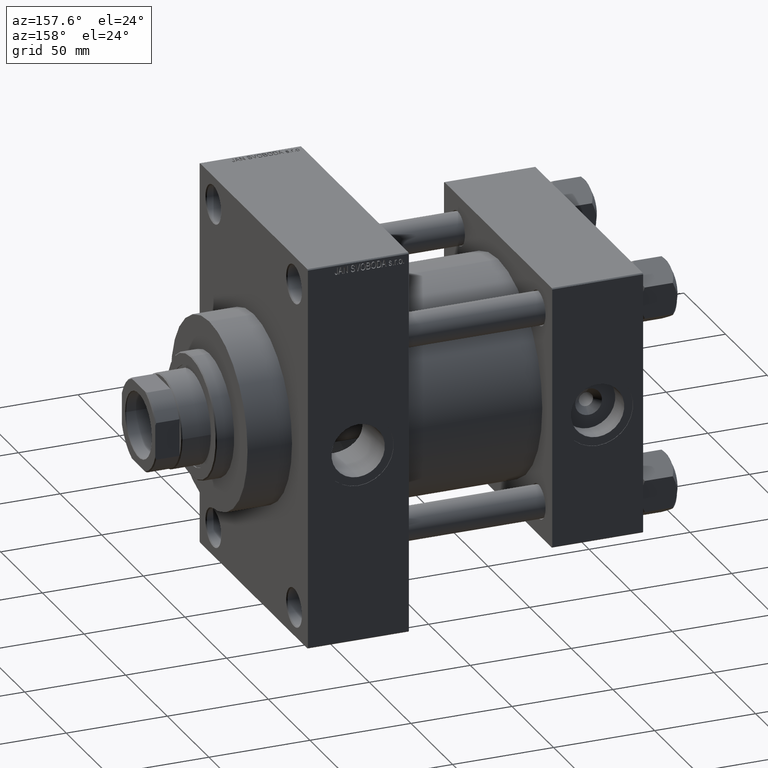
[diagram: clean part render]
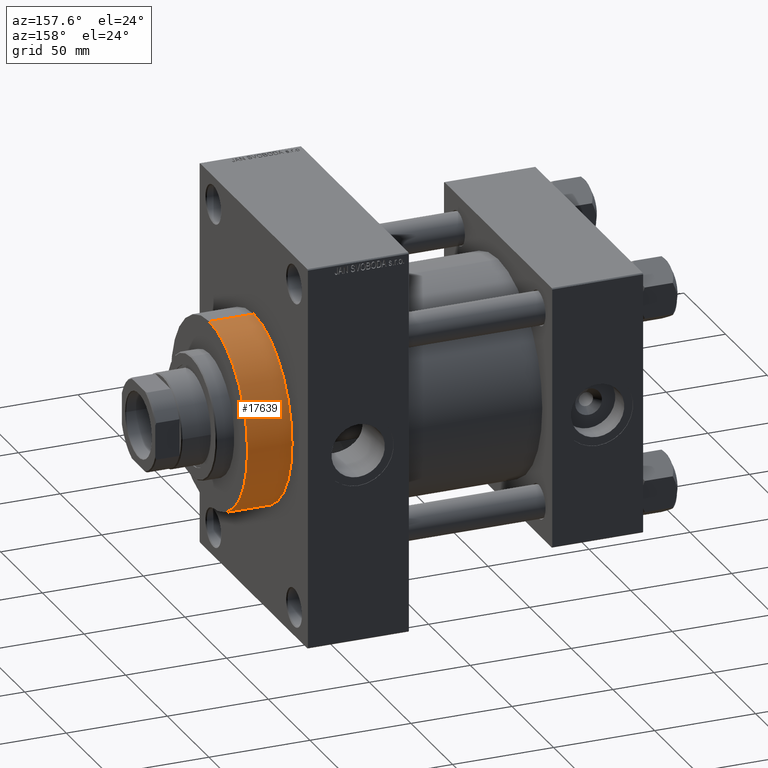
[diagram: same view with one face highlighted and labeled with its STEP entity id]
A machine part, auxiliary view. The second image highlights one B-rep face of the part: STEP entity #17639.
In plain terms, the highlighted cylindrical surface (partial cylindrical patch) has radius 46 mm, axis along (-1, -0, -0).
Its self-contained STEP definition (entity closure, byte-faithful):
#2260 = CARTESIAN_POINT ( 'NONE',  ( 187.9999999999999716, 0.000000000000000000, 0.000000000000000000 ) ) ;
#2658 = CARTESIAN_POINT ( 'NONE',  ( 187.9999999999999716, 0.000000000000000000, 46.00000000000000000 ) ) ;
#2710 = VECTOR ( 'NONE', #39465, 1000.000000000000000 ) ;
#2963 = DIRECTION ( 'NONE',  ( 0.000000000000000000, 0.000000000000000000, 1.000000000000000000 ) ) ;
#3339 = DIRECTION ( 'NONE',  ( 1.000000000000000000, 0.000000000000000000, 0.000000000000000000 ) ) ;
#3798 = VERTEX_POINT ( 'NONE', #9287 ) ;
#5163 = CARTESIAN_POINT ( 'NONE',  ( 165.9999999999999716, 5.633375276077824704E-15, -46.00000000000000000 ) ) ;
#6904 = EDGE_CURVE ( 'NONE', #41501, #42359, #28934, .T. ) ;
#7142 = LINE ( 'NONE', #24760, #2710 ) ;
#8184 = DIRECTION ( 'NONE',  ( 0.000000000000000000, 0.000000000000000000, -1.000000000000000000 ) ) ;
#9287 = CARTESIAN_POINT ( 'NONE',  ( 187.9999999999999716, 5.633375276077824704E-15, -46.00000000000000000 ) ) ;
#9691 = AXIS2_PLACEMENT_3D ( 'NONE', #46992, #3339, #13957 ) ;
#9969 = FACE_OUTER_BOUND ( 'NONE', #43794, .T. ) ;
#11374 = ORIENTED_EDGE ( 'NONE', *, *, #41756, .T. ) ;
#13957 = DIRECTION ( 'NONE',  ( 0.000000000000000000, 0.000000000000000000, -1.000000000000000000 ) ) ;
#14376 = VERTEX_POINT ( 'NONE', #5163 ) ;
#14520 = EDGE_CURVE ( 'NONE', #14376, #42359, #20975, .T. ) ;
#16049 = ORIENTED_EDGE ( 'NONE', *, *, #22124, .F. ) ;
#17639 = ADVANCED_FACE ( 'NONE', ( #9969 ), #43231, .T. ) ;
#20975 = CIRCLE ( 'NONE', #25594, 46.00000000000000000 ) ;
#22124 = EDGE_CURVE ( 'NONE', #3798, #41501, #37394, .T. ) ;
#24760 = CARTESIAN_POINT ( 'NONE',  ( 187.9999999999999716, 5.633375276077824704E-15, -46.00000000000000000 ) ) ;
#25594 = AXIS2_PLACEMENT_3D ( 'NONE', #33270, #26764, #8184 ) ;
#26764 = DIRECTION ( 'NONE',  ( 1.000000000000000000, 0.000000000000000000, 0.000000000000000000 ) ) ;
#28934 = LINE ( 'NONE', #2658, #36936 ) ;
#29629 = CARTESIAN_POINT ( 'NONE',  ( 165.9999999999999716, 0.000000000000000000, 46.00000000000000000 ) ) ;
#29696 = ORIENTED_EDGE ( 'NONE', *, *, #14520, .T. ) ;
#33270 = CARTESIAN_POINT ( 'NONE',  ( 165.9999999999999716, 0.000000000000000000, 0.000000000000000000 ) ) ;
#34201 = AXIS2_PLACEMENT_3D ( 'NONE', #2260, #38257, #2963 ) ;
#36936 = VECTOR ( 'NONE', #47022, 1000.000000000000000 ) ;
#37394 = CIRCLE ( 'NONE', #9691, 46.00000000000000000 ) ;
#38257 = DIRECTION ( 'NONE',  ( -1.000000000000000000, -0.000000000000000000, -0.000000000000000000 ) ) ;
#39465 = DIRECTION ( 'NONE',  ( -1.000000000000000000, -0.000000000000000000, -0.000000000000000000 ) ) ;
#41501 = VERTEX_POINT ( 'NONE', #44096 ) ;
#41756 = EDGE_CURVE ( 'NONE', #3798, #14376, #7142, .T. ) ;
#42359 = VERTEX_POINT ( 'NONE', #29629 ) ;
#42566 = ORIENTED_EDGE ( 'NONE', *, *, #6904, .F. ) ;
#43231 = CYLINDRICAL_SURFACE ( 'NONE', #34201, 46.00000000000000000 ) ;
#43794 = EDGE_LOOP ( 'NONE', ( #16049, #11374, #29696, #42566 ) ) ;
#44096 = CARTESIAN_POINT ( 'NONE',  ( 187.9999999999999716, 0.000000000000000000, 46.00000000000000000 ) ) ;
#46992 = CARTESIAN_POINT ( 'NONE',  ( 187.9999999999999716, 0.000000000000000000, 0.000000000000000000 ) ) ;
#47022 = DIRECTION ( 'NONE',  ( -1.000000000000000000, -0.000000000000000000, -0.000000000000000000 ) ) ;